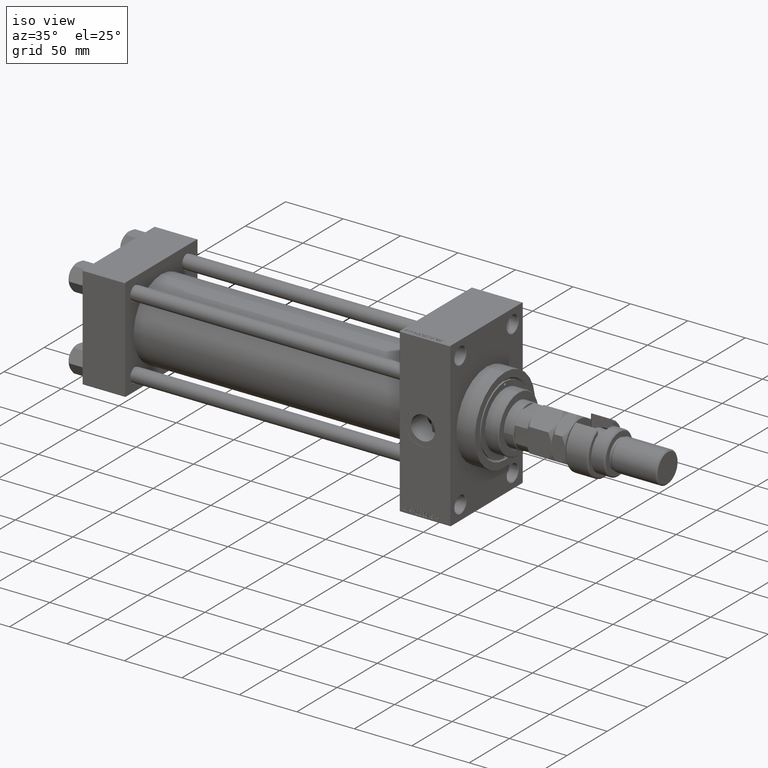
[diagram: clean part render]
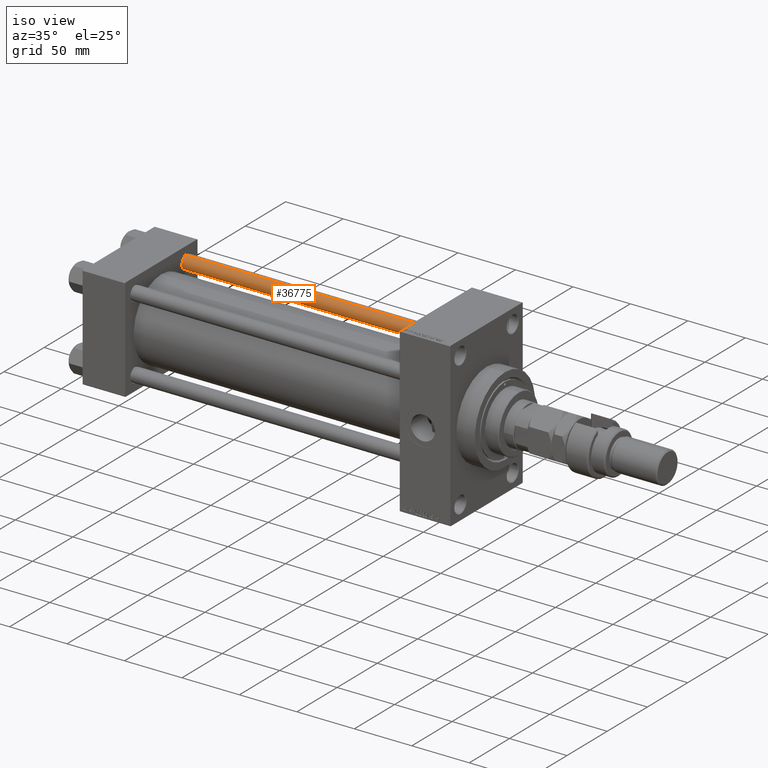
[diagram: same view with one face highlighted and labeled with its STEP entity id]
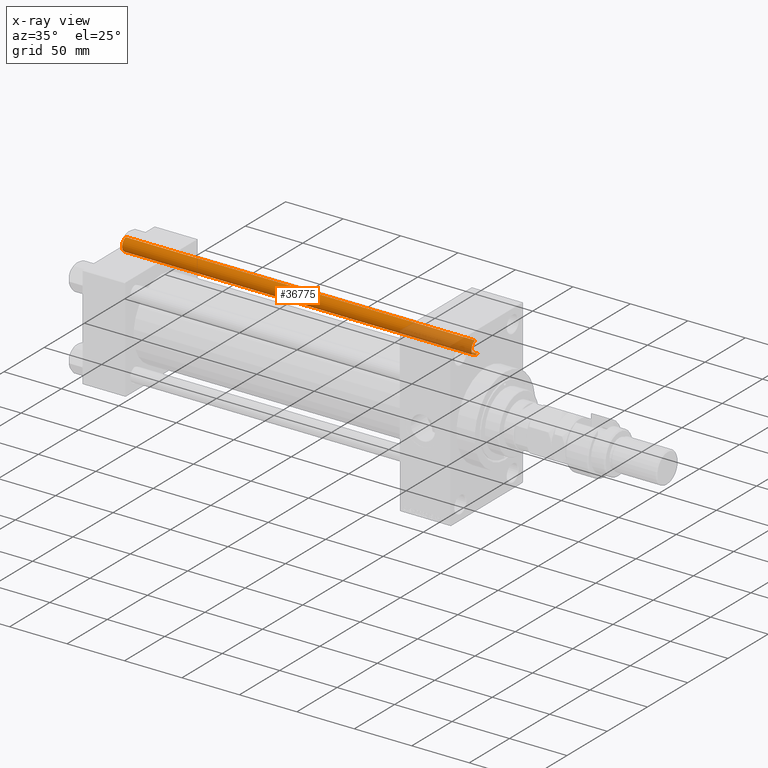
[diagram: x-ray of the same camera — body ghosted, the highlighted face saturated]
A machine part, iso view. The second image highlights one B-rep face of the part: STEP entity #36775.
The next image is the same camera in x-ray: the body ghosted, the highlighted face saturated — about 19% of this face is hidden behind the body in this view.
In plain terms, the highlighted cylindrical surface (edge-blend (fillet) strip) has radius 6 mm, axis along (-1, -0, 0).
Its self-contained STEP definition (entity closure, byte-faithful):
#952 = DIRECTION ( 'NONE',  ( -1.000000000000000000, 0.000000000000000000, 0.000000000000000000 ) ) ;
#1571 = CARTESIAN_POINT ( 'NONE',  ( 0.000000000000000000, 0.000000000000000000, 0.5000000000000004441 ) ) ;
#1880 = LINE ( 'NONE', #4943, #38786 ) ;
#1928 = CYLINDRICAL_SURFACE ( 'NONE', #22736, 6.000000000000000888 ) ;
#2397 = ORIENTED_EDGE ( 'NONE', *, *, #39085, .T. ) ;
#4943 = CARTESIAN_POINT ( 'NONE',  ( -6.000000000000000888, 0.000000000000000000, 305.0000000000000000 ) ) ;
#6954 = CARTESIAN_POINT ( 'NONE',  ( 6.000000000000000888, 7.347880794884120722E-16, 304.5000000000000000 ) ) ;
#7367 = CIRCLE ( 'NONE', #13838, 6.000000000000000888 ) ;
#7744 = EDGE_CURVE ( 'NONE', #44073, #9454, #24017, .T. ) ;
#8482 = VERTEX_POINT ( 'NONE', #6954 ) ;
#9055 = DIRECTION ( 'NONE',  ( -0.000000000000000000, -0.000000000000000000, -1.000000000000000000 ) ) ;
#9454 = VERTEX_POINT ( 'NONE', #45619 ) ;
#10825 = EDGE_CURVE ( 'NONE', #8482, #9454, #17873, .T. ) ;
#11102 = DIRECTION ( 'NONE',  ( 0.000000000000000000, 0.000000000000000000, -1.000000000000000000 ) ) ;
#11616 = CARTESIAN_POINT ( 'NONE',  ( 0.000000000000000000, 0.000000000000000000, 304.5000000000000000 ) ) ;
#12807 = CARTESIAN_POINT ( 'NONE',  ( -6.000000000000000888, 0.000000000000000000, 304.5000000000000000 ) ) ;
#13057 = EDGE_CURVE ( 'NONE', #23253, #44073, #1880, .T. ) ;
#13122 = CARTESIAN_POINT ( 'NONE',  ( 0.000000000000000000, 0.000000000000000000, 305.0000000000000000 ) ) ;
#13251 = DIRECTION ( 'NONE',  ( 1.000000000000000000, 0.000000000000000000, 0.000000000000000000 ) ) ;
#13838 = AXIS2_PLACEMENT_3D ( 'NONE', #11616, #11102, #26905 ) ;
#14521 = CARTESIAN_POINT ( 'NONE',  ( -6.000000000000000888, 0.000000000000000000, 0.5000000000000004441 ) ) ;
#17873 = LINE ( 'NONE', #29585, #39573 ) ;
#20557 = ORIENTED_EDGE ( 'NONE', *, *, #10825, .F. ) ;
#20782 = AXIS2_PLACEMENT_3D ( 'NONE', #1571, #44551, #13251 ) ;
#22736 = AXIS2_PLACEMENT_3D ( 'NONE', #13122, #9055, #952 ) ;
#23253 = VERTEX_POINT ( 'NONE', #12807 ) ;
#24017 = CIRCLE ( 'NONE', #20782, 6.000000000000000888 ) ;
#24840 = FACE_OUTER_BOUND ( 'NONE', #39407, .T. ) ;
#26905 = DIRECTION ( 'NONE',  ( 1.000000000000000000, 0.000000000000000000, 0.000000000000000000 ) ) ;
#27628 = ORIENTED_EDGE ( 'NONE', *, *, #7744, .T. ) ;
#29082 = DIRECTION ( 'NONE',  ( -0.000000000000000000, -0.000000000000000000, -1.000000000000000000 ) ) ;
#29585 = CARTESIAN_POINT ( 'NONE',  ( 6.000000000000000888, 7.347880794884120722E-16, 305.0000000000000000 ) ) ;
#36775 = ADVANCED_FACE ( 'NONE', ( #24840 ), #1928, .T. ) ;
#38786 = VECTOR ( 'NONE', #44130, 1000.000000000000000 ) ;
#39085 = EDGE_CURVE ( 'NONE', #8482, #23253, #7367, .T. ) ;
#39407 = EDGE_LOOP ( 'NONE', ( #20557, #2397, #45005, #27628 ) ) ;
#39573 = VECTOR ( 'NONE', #29082, 1000.000000000000000 ) ;
#44073 = VERTEX_POINT ( 'NONE', #14521 ) ;
#44130 = DIRECTION ( 'NONE',  ( -0.000000000000000000, -0.000000000000000000, -1.000000000000000000 ) ) ;
#44551 = DIRECTION ( 'NONE',  ( -0.000000000000000000, -0.000000000000000000, 1.000000000000000000 ) ) ;
#45005 = ORIENTED_EDGE ( 'NONE', *, *, #13057, .T. ) ;
#45619 = CARTESIAN_POINT ( 'NONE',  ( 6.000000000000000888, 7.347880794884120722E-16, 0.5000000000000004441 ) ) ;